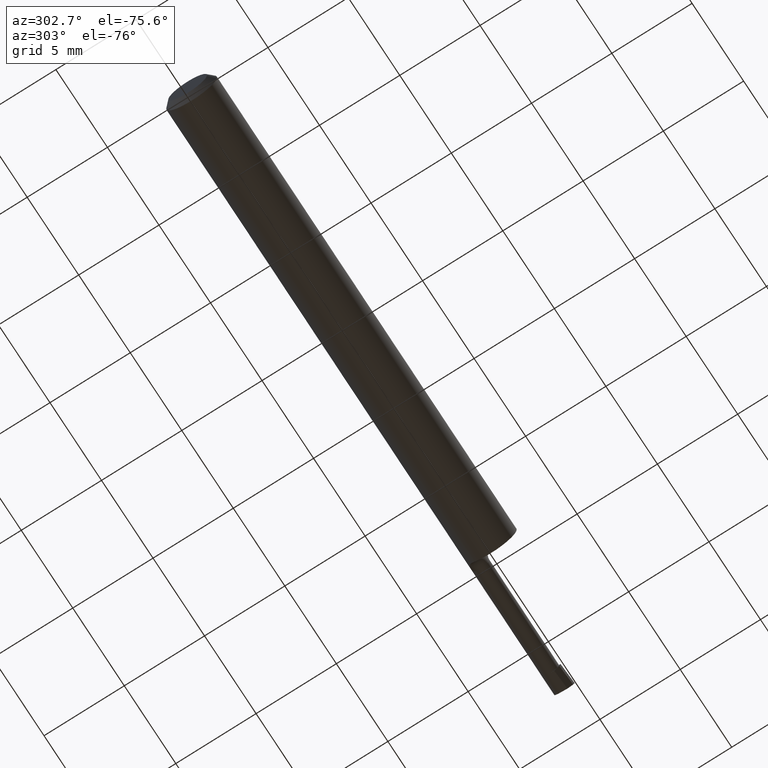
[diagram: clean part render]
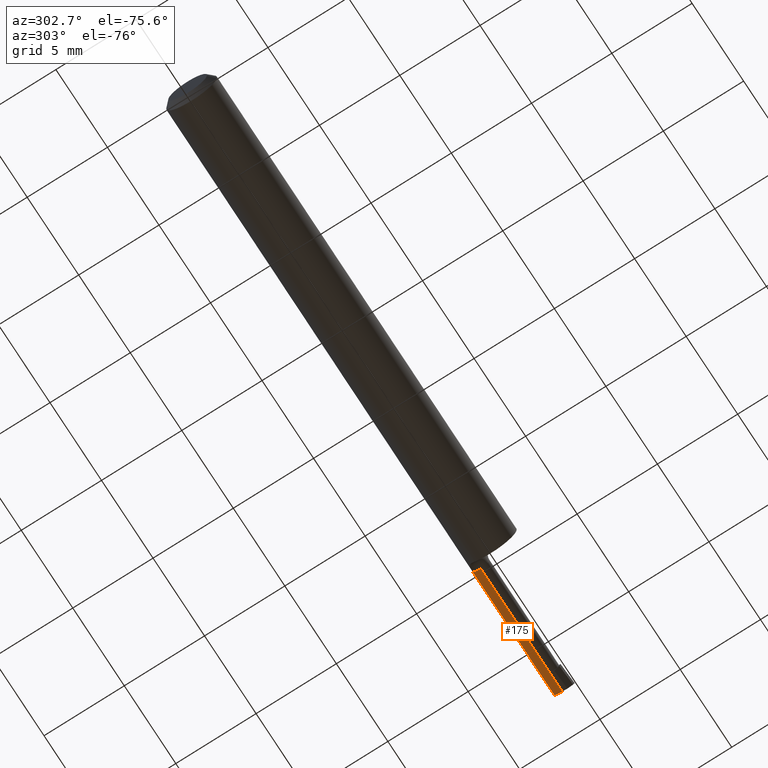
[diagram: same view with one face highlighted and labeled with its STEP entity id]
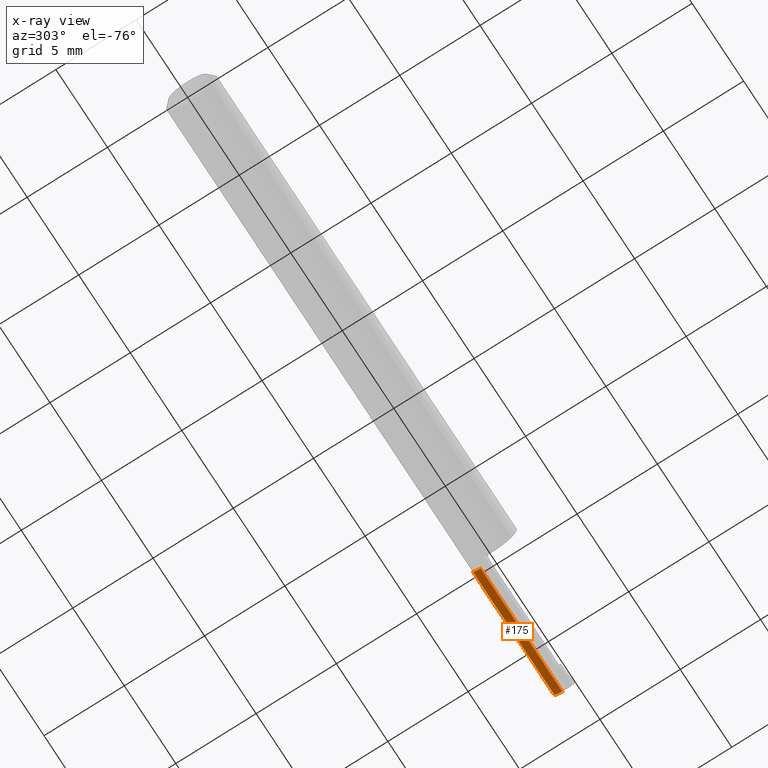
[diagram: x-ray of the same camera — body ghosted, the highlighted face saturated]
A machine part, auxiliary view. The second image highlights one B-rep face of the part: STEP entity #175.
The next image is the same camera in x-ray: the body ghosted, the highlighted face saturated — about 0% of this face is hidden behind the body in this view.
In plain terms, the highlighted cylindrical surface (edge-blend (fillet) strip) has radius 0.5499 mm, axis along (-1, -0, -0).
Its self-contained STEP definition (entity closure, byte-faithful):
#16 = VECTOR ( 'NONE', #589, 39.37007874015748143 ) ;
#76 = CARTESIAN_POINT ( 'NONE',  ( 1.500000000000000222, 0.04200000000000000955, -0.02165000000000000951 ) ) ;
#78 = LINE ( 'NONE', #283, #676 ) ;
#94 = CIRCLE ( 'NONE', #539, 0.02165000000000004768 ) ;
#130 = CARTESIAN_POINT ( 'NONE',  ( 0.000000000000000000, 0.04200000000000000955, 0.000000000000000000 ) ) ;
#139 = FACE_OUTER_BOUND ( 'NONE', #177, .T. ) ;
#171 = LINE ( 'NONE', #378, #16 ) ;
#175 = ADVANCED_FACE ( 'NONE', ( #139 ), #599, .T. ) ;
#177 = EDGE_LOOP ( 'NONE', ( #551, #672, #245, #643, #532 ) ) ;
#201 = DIRECTION ( 'NONE',  ( -1.000000000000000000, -0.000000000000000000, -0.000000000000000000 ) ) ;
#224 =( BOUNDED_CURVE ( )  B_SPLINE_CURVE ( 3, ( #581, #227, #528, #478 ),
 .UNSPECIFIED., .F., .T. ) 
 B_SPLINE_CURVE_WITH_KNOTS ( ( 4, 4 ),
 ( 5.437303047992022798, 6.580420033176219263 ),
 .UNSPECIFIED. ) 
 CURVE ( )  GEOMETRIC_REPRESENTATION_ITEM ( )  RATIONAL_B_SPLINE_CURVE ( ( 1.000000000000000000, 0.8940392936708234650, 0.8940392936708234650, 1.000000000000000000 ) ) 
 REPRESENTATION_ITEM ( '' )  );
#226 = VERTEX_POINT ( 'NONE', #340 ) ;
#227 = CARTESIAN_POINT ( 'NONE',  ( 1.496527055185697952, 0.05807791118768796529, -0.01692595712073620765 ) ) ;
#241 = VERTEX_POINT ( 'NONE', #550 ) ;
#243 = DIRECTION ( 'NONE',  ( 0.000000000000000000, 0.000000000000000000, 1.000000000000000000 ) ) ;
#245 = ORIENTED_EDGE ( 'NONE', *, *, #325, .F. ) ;
#280 = DIRECTION ( 'NONE',  ( -1.000000000000000000, -0.000000000000000000, -0.000000000000000000 ) ) ;
#283 = CARTESIAN_POINT ( 'NONE',  ( 1.317500000000000115, 0.06169999999999998402, -0.008979560122856904483 ) ) ;
#316 = CARTESIAN_POINT ( 'NONE',  ( 1.185000000000000275, 0.06170000000000000484, -0.008979560122856930504 ) ) ;
#325 = EDGE_CURVE ( 'NONE', #346, #241, #94, .T. ) ;
#340 = CARTESIAN_POINT ( 'NONE',  ( 1.450000000000000178, 0.04200000000000000955, -0.02165000000000000951 ) ) ;
#346 = VERTEX_POINT ( 'NONE', #316 ) ;
#354 = CARTESIAN_POINT ( 'NONE',  ( 1.496549943437988528, 0.04200000000000000955, -0.02165000000000000951 ) ) ;
#378 = CARTESIAN_POINT ( 'NONE',  ( 0.000000000000000000, 0.04200000000000000955, -0.02165000000000002686 ) ) ;
#405 = DIRECTION ( 'NONE',  ( -1.000000000000000000, -0.000000000000000000, -0.000000000000000000 ) ) ;
#431 = LINE ( 'NONE', #76, #457 ) ;
#449 = EDGE_CURVE ( 'NONE', #463, #605, #224, .T. ) ;
#457 = VECTOR ( 'NONE', #280, 39.37007874015748143 ) ;
#463 = VERTEX_POINT ( 'NONE', #483 ) ;
#478 = CARTESIAN_POINT ( 'NONE',  ( 1.496549943437988528, 0.04200000000000000955, -0.02165000000000000951 ) ) ;
#483 = CARTESIAN_POINT ( 'NONE',  ( 1.497306498500703631, 0.06169999999999998402, -0.008979560122856904483 ) ) ;
#484 = EDGE_CURVE ( 'NONE', #605, #226, #431, .T. ) ;
#489 = DIRECTION ( 'NONE',  ( -1.000000000000000000, -0.000000000000000000, -0.000000000000000000 ) ) ;
#499 = EDGE_CURVE ( 'NONE', #463, #346, #78, .T. ) ;
#528 = CARTESIAN_POINT ( 'NONE',  ( 1.496244981430449483, 0.05073296928954758311, -0.02165000000000002339 ) ) ;
#529 = EDGE_CURVE ( 'NONE', #226, #241, #171, .T. ) ;
#532 = ORIENTED_EDGE ( 'NONE', *, *, #449, .T. ) ;
#539 = AXIS2_PLACEMENT_3D ( 'NONE', #680, #201, #568 ) ;
#550 = CARTESIAN_POINT ( 'NONE',  ( 1.185000000000000275, 0.04200000000000000955, -0.02165000000000004768 ) ) ;
#551 = ORIENTED_EDGE ( 'NONE', *, *, #484, .T. ) ;
#568 = DIRECTION ( 'NONE',  ( 0.000000000000000000, 0.000000000000000000, 1.000000000000000000 ) ) ;
#581 = CARTESIAN_POINT ( 'NONE',  ( 1.497306498500703631, 0.06169999999999998402, -0.008979560122856904483 ) ) ;
#589 = DIRECTION ( 'NONE',  ( -1.000000000000000000, -0.000000000000000000, -0.000000000000000000 ) ) ;
#599 = CYLINDRICAL_SURFACE ( 'NONE', #606, 0.02165000000000002686 ) ;
#605 = VERTEX_POINT ( 'NONE', #354 ) ;
#606 = AXIS2_PLACEMENT_3D ( 'NONE', #130, #405, #243 ) ;
#643 = ORIENTED_EDGE ( 'NONE', *, *, #499, .F. ) ;
#672 = ORIENTED_EDGE ( 'NONE', *, *, #529, .T. ) ;
#676 = VECTOR ( 'NONE', #489, 39.37007874015748143 ) ;
#680 = CARTESIAN_POINT ( 'NONE',  ( 1.185000000000000275, 0.04200000000000000955, 0.000000000000000000 ) ) ;